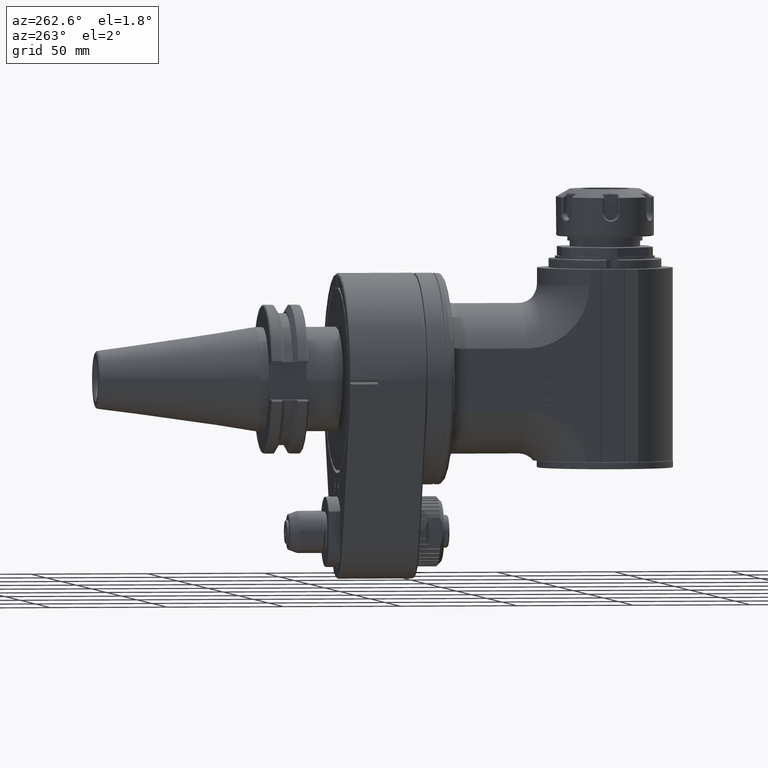
[diagram: clean part render]
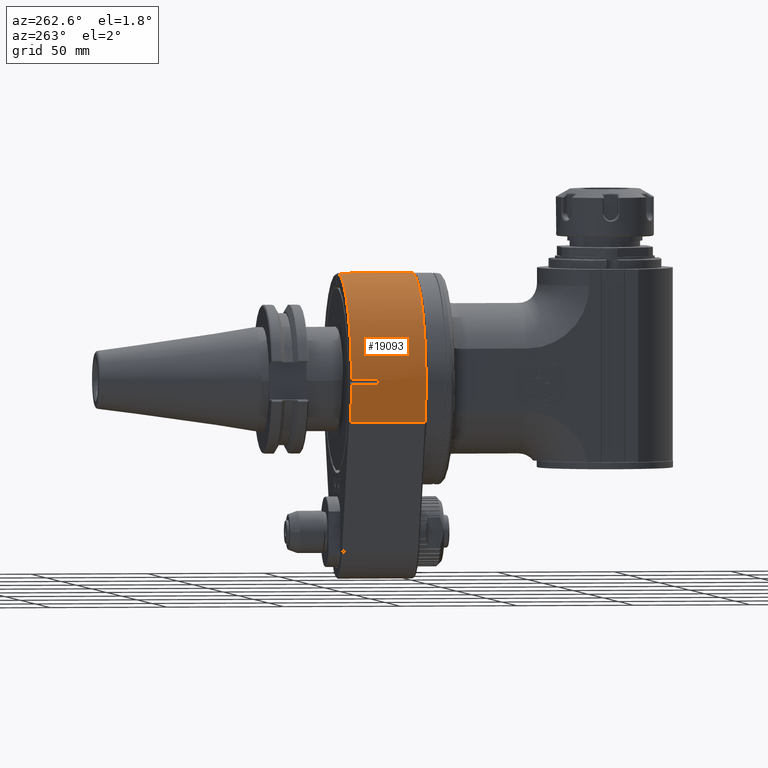
[diagram: same view with one face highlighted and labeled with its STEP entity id]
A machine part, auxiliary view. The second image highlights one B-rep face of the part: STEP entity #19093.
In plain terms, the highlighted cylindrical surface (partial cylindrical patch) has radius 45 mm, axis along (0, 1, 0).
Its self-contained STEP definition (entity closure, byte-faithful):
#851=CIRCLE('',#20232,45.);
#852=CIRCLE('',#20236,45.);
#984=CIRCLE('',#20508,45.);
#987=CIRCLE('',#20520,45.);
#1365=CYLINDRICAL_SURFACE('',#20519,45.);
#1660=FACE_OUTER_BOUND('',#2761,.T.);
#2761=EDGE_LOOP('',(#13554,#13555,#13556,#13557,#13558,#13559,#13560,#13561));
#3917=LINE('',#27847,#5848);
#3921=LINE('',#27858,#5852);
#3922=LINE('',#27867,#5853);
#4098=LINE('',#29360,#6029);
#5848=VECTOR('',#22281,10.);
#5852=VECTOR('',#22287,10.);
#5853=VECTOR('',#22294,10.);
#6029=VECTOR('',#23032,32.00018741808);
#7939=VERTEX_POINT('',#27838);
#7940=VERTEX_POINT('',#27842);
#7941=VERTEX_POINT('',#27846);
#7943=VERTEX_POINT('',#27852);
#7944=VERTEX_POINT('',#27856);
#7945=VERTEX_POINT('',#27860);
#7946=VERTEX_POINT('',#27866);
#8156=VERTEX_POINT('',#29330);
#9867=EDGE_CURVE('',#7939,#7940,#851,.T.);
#9868=EDGE_CURVE('',#7939,#7941,#3917,.T.);
#9873=EDGE_CURVE('',#7944,#7943,#3921,.T.);
#9874=EDGE_CURVE('',#7945,#7943,#852,.T.);
#9876=EDGE_CURVE('',#7945,#7946,#3922,.T.);
#10223=EDGE_CURVE('',#8156,#7946,#984,.T.);
#10239=EDGE_CURVE('',#8156,#7940,#4098,.T.);
#10240=EDGE_CURVE('',#7944,#7941,#987,.T.);
#13554=ORIENTED_EDGE('',*,*,#9867,.T.);
#13555=ORIENTED_EDGE('',*,*,#10239,.F.);
#13556=ORIENTED_EDGE('',*,*,#10223,.T.);
#13557=ORIENTED_EDGE('',*,*,#9876,.F.);
#13558=ORIENTED_EDGE('',*,*,#9874,.T.);
#13559=ORIENTED_EDGE('',*,*,#9873,.F.);
#13560=ORIENTED_EDGE('',*,*,#10240,.T.);
#13561=ORIENTED_EDGE('',*,*,#9868,.F.);
#19093=ADVANCED_FACE('',(#1660),#1365,.T.);
#20232=AXIS2_PLACEMENT_3D('',#27844,#22277,#22278);
#20236=AXIS2_PLACEMENT_3D('',#27861,#22290,#22291);
#20508=AXIS2_PLACEMENT_3D('',#29331,#22997,#22998);
#20519=AXIS2_PLACEMENT_3D('',#29361,#23033,#23034);
#20520=AXIS2_PLACEMENT_3D('',#29362,#23035,#23036);
#22277=DIRECTION('center_axis',(0.,-1.,0.));
#22278=DIRECTION('ref_axis',(-0.99975839700321,0.,-0.0219806192263202));
#22281=DIRECTION('',(0.,-1.,0.));
#22287=DIRECTION('',(0.,1.,0.));
#22290=DIRECTION('center_axis',(0.,-1.,0.));
#22291=DIRECTION('ref_axis',(-0.0166666666666802,0.,0.999861101464709));
#22294=DIRECTION('',(0.,-1.,0.));
#22997=DIRECTION('center_axis',(0.,1.,0.));
#22998=DIRECTION('ref_axis',(-1.,0.,0.));
#23032=DIRECTION('',(5.357904936583E-13,1.,1.99061822447E-13));
#23033=DIRECTION('center_axis',(0.,1.,0.));
#23034=DIRECTION('ref_axis',(-0.836644063548053,0.,0.54774694059374));
#23035=DIRECTION('center_axis',(0.,-1.,0.));
#23036=DIRECTION('ref_axis',(-0.999758397003231,0.,0.0219806192253507));
#27838=CARTESIAN_POINT('',(-44.9891278655342,32.500608715533,-0.989127866025303));
#27842=CARTESIAN_POINT('',(-41.5383202524667,32.5003101427439,-17.3076334733757));
#27844=CARTESIAN_POINT('Origin',(-4.760636229593E-13,32.50060871644,0.));
#27846=CARTESIAN_POINT('',(-44.9891278654203,21.,-0.989127865841766));
#27847=CARTESIAN_POINT('',(-44.9891278651453,0.,-0.989127865145143));
#27852=CARTESIAN_POINT('',(-44.9891278647653,32.4999508478143,0.989127864285883));
#27856=CARTESIAN_POINT('',(-44.9891278647519,21.,0.989127864164839));
#27858=CARTESIAN_POINT('',(-44.9891278651453,0.,0.989127865145298));
#27860=CARTESIAN_POINT('',(-0.750000000008277,32.4999508477707,44.9937495655606));
#27861=CARTESIAN_POINT('Origin',(1.076472254677E-12,32.49995084693,-1.803002091991E-13));
#27866=CARTESIAN_POINT('',(-0.750000000009797,0.500227001871148,44.9937495654966));
#27867=CARTESIAN_POINT('',(-0.75,0.,44.9937495659119));
#29330=CARTESIAN_POINT('',(-41.5384616394059,0.500113797660992,-17.3076923845356));
#29331=CARTESIAN_POINT('Origin',(-4.583000545653E-13,0.5002270028739,3.19744331092E-14));
#29360=CARTESIAN_POINT('',(-41.53846152592,0.5001217498938,-17.30769233725));
#29361=CARTESIAN_POINT('Origin',(0.,0.,0.));
#29362=CARTESIAN_POINT('Origin',(0.,21.,0.));